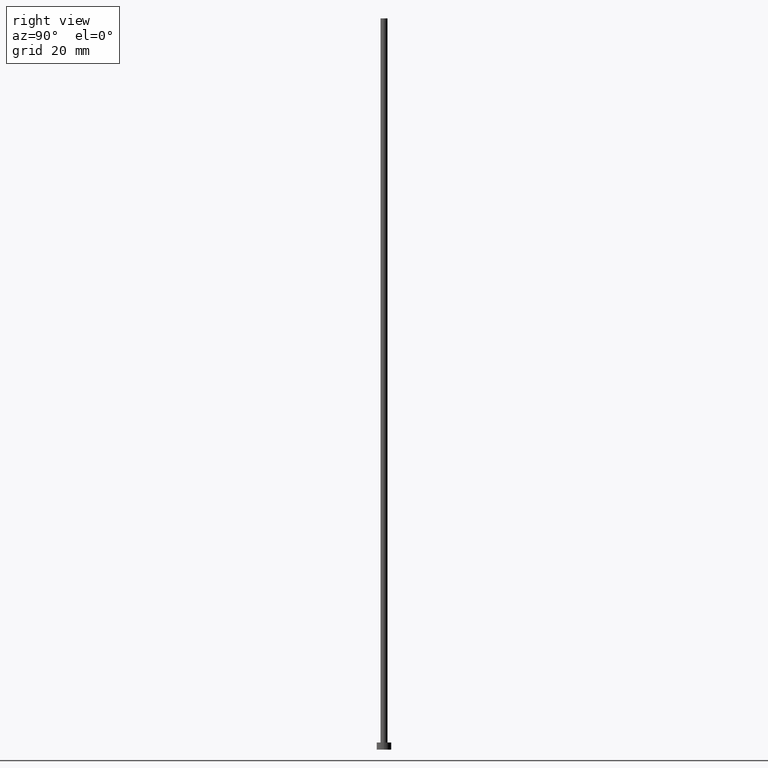
[diagram: clean part render]
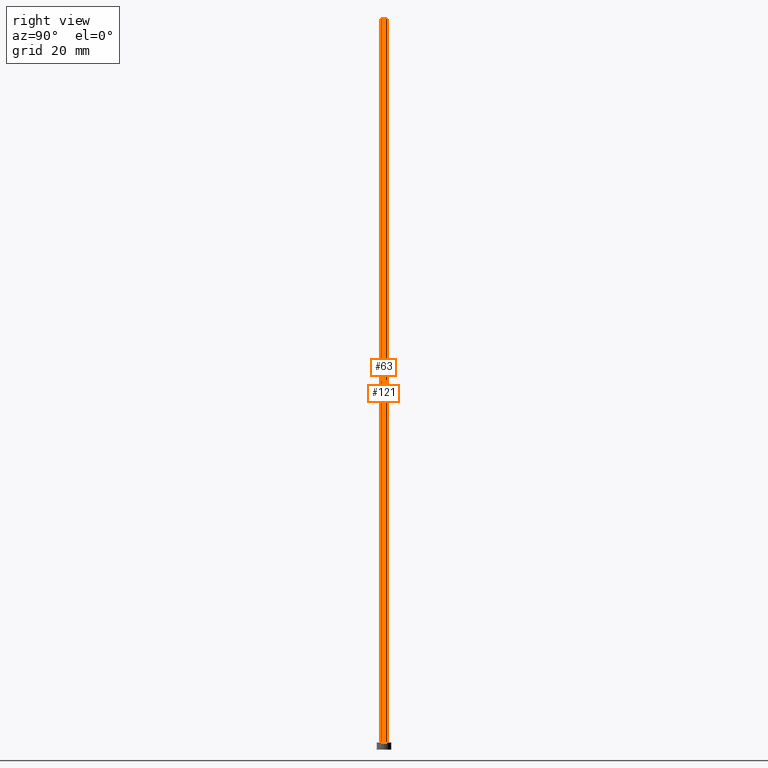
[diagram: same view with one multi-face feature highlighted, each face labeled with its STEP entity id]
A machine part, right view. The highlighted faces form ONE feature: a constant-radius fillet chain: 2 tangent blend faces with common blend radius 0.6 mm. The faces share edges in the B-rep.
Their STEP definitions:
[1] entity #63 (Cylinder):
#7 = CIRCLE ( 'NONE', #134, 0.5999999999999999778 ) ;
#18 = ORIENTED_EDGE ( 'NONE', *, *, #146, .T. ) ;
#19 = EDGE_CURVE ( 'NONE', #94, #36, #7, .T. ) ;
#20 = ORIENTED_EDGE ( 'NONE', *, *, #166, .T. ) ;
#23 = CARTESIAN_POINT ( 'NONE',  ( -0.5999999999999999778, 0.000000000000000000, 125.0000000000000000 ) ) ;
#27 = EDGE_CURVE ( 'NONE', #36, #229, #96, .T. ) ;
#28 = CARTESIAN_POINT ( 'NONE',  ( -0.5999999999999999778, 0.000000000000000000, 1.199999999999999956 ) ) ;
#29 = VECTOR ( 'NONE', #38, 1000.000000000000000 ) ;
#36 = VERTEX_POINT ( 'NONE', #132 ) ;
#38 = DIRECTION ( 'NONE',  ( -0.000000000000000000, -0.000000000000000000, -1.000000000000000000 ) ) ;
#39 = ORIENTED_EDGE ( 'NONE', *, *, #27, .F. ) ;
#43 = VECTOR ( 'NONE', #123, 1000.000000000000000 ) ;
#57 = CARTESIAN_POINT ( 'NONE',  ( 0.000000000000000000, 0.000000000000000000, 125.0000000000000000 ) ) ;
#58 = DIRECTION ( 'NONE',  ( -1.000000000000000000, 0.000000000000000000, 0.000000000000000000 ) ) ;
#63 = ADVANCED_FACE ( 'NONE', ( #250 ), #75, .T. ) ;
#75 = CYLINDRICAL_SURFACE ( 'NONE', #217, 0.5999999999999999778 ) ;
#94 = VERTEX_POINT ( 'NONE', #23 ) ;
#96 = LINE ( 'NONE', #191, #29 ) ;
#113 = ORIENTED_EDGE ( 'NONE', *, *, #19, .F. ) ;
#117 = EDGE_LOOP ( 'NONE', ( #39, #113, #20, #18 ) ) ;
#123 = DIRECTION ( 'NONE',  ( -0.000000000000000000, -0.000000000000000000, -1.000000000000000000 ) ) ;
#125 = CARTESIAN_POINT ( 'NONE',  ( 0.5999999999999999778, 7.347880794884117764E-17, 1.199999999999999956 ) ) ;
#131 = DIRECTION ( 'NONE',  ( 0.000000000000000000, 0.000000000000000000, 1.000000000000000000 ) ) ;
#132 = CARTESIAN_POINT ( 'NONE',  ( 0.5999999999999999778, 7.347880794884117764E-17, 125.0000000000000000 ) ) ;
#134 = AXIS2_PLACEMENT_3D ( 'NONE', #253, #131, #210 ) ;
#137 = LINE ( 'NONE', #155, #43 ) ;
#146 = EDGE_CURVE ( 'NONE', #213, #229, #222, .T. ) ;
#148 = AXIS2_PLACEMENT_3D ( 'NONE', #201, #218, #198 ) ;
#155 = CARTESIAN_POINT ( 'NONE',  ( -0.5999999999999999778, 0.000000000000000000, 125.0000000000000000 ) ) ;
#166 = EDGE_CURVE ( 'NONE', #94, #213, #137, .T. ) ;
#191 = CARTESIAN_POINT ( 'NONE',  ( 0.5999999999999999778, 7.347880794884117764E-17, 125.0000000000000000 ) ) ;
#198 = DIRECTION ( 'NONE',  ( 1.000000000000000000, 0.000000000000000000, 0.000000000000000000 ) ) ;
#201 = CARTESIAN_POINT ( 'NONE',  ( 0.000000000000000000, 0.000000000000000000, 1.199999999999999956 ) ) ;
#210 = DIRECTION ( 'NONE',  ( 1.000000000000000000, 0.000000000000000000, 0.000000000000000000 ) ) ;
#213 = VERTEX_POINT ( 'NONE', #28 ) ;
#217 = AXIS2_PLACEMENT_3D ( 'NONE', #57, #233, #58 ) ;
#218 = DIRECTION ( 'NONE',  ( 0.000000000000000000, 0.000000000000000000, 1.000000000000000000 ) ) ;
#222 = CIRCLE ( 'NONE', #148, 0.5999999999999999778 ) ;
#229 = VERTEX_POINT ( 'NONE', #125 ) ;
#233 = DIRECTION ( 'NONE',  ( -0.000000000000000000, -0.000000000000000000, -1.000000000000000000 ) ) ;
#250 = FACE_OUTER_BOUND ( 'NONE', #117, .T. ) ;
#253 = CARTESIAN_POINT ( 'NONE',  ( 0.000000000000000000, 0.000000000000000000, 125.0000000000000000 ) ) ;
[2] entity #121 (Cylinder):
#13 = AXIS2_PLACEMENT_3D ( 'NONE', #255, #157, #80 ) ;
#23 = CARTESIAN_POINT ( 'NONE',  ( -0.5999999999999999778, 0.000000000000000000, 125.0000000000000000 ) ) ;
#25 = CARTESIAN_POINT ( 'NONE',  ( 0.000000000000000000, 0.000000000000000000, 1.199999999999999956 ) ) ;
#26 = CYLINDRICAL_SURFACE ( 'NONE', #13, 0.5999999999999999778 ) ;
#27 = EDGE_CURVE ( 'NONE', #36, #229, #96, .T. ) ;
#28 = CARTESIAN_POINT ( 'NONE',  ( -0.5999999999999999778, 0.000000000000000000, 1.199999999999999956 ) ) ;
#29 = VECTOR ( 'NONE', #38, 1000.000000000000000 ) ;
#36 = VERTEX_POINT ( 'NONE', #132 ) ;
#38 = DIRECTION ( 'NONE',  ( -0.000000000000000000, -0.000000000000000000, -1.000000000000000000 ) ) ;
#41 = DIRECTION ( 'NONE',  ( 1.000000000000000000, 0.000000000000000000, 0.000000000000000000 ) ) ;
#43 = VECTOR ( 'NONE', #123, 1000.000000000000000 ) ;
#48 = EDGE_CURVE ( 'NONE', #36, #94, #98, .T. ) ;
#60 = ORIENTED_EDGE ( 'NONE', *, *, #224, .T. ) ;
#64 = FACE_OUTER_BOUND ( 'NONE', #254, .T. ) ;
#77 = CARTESIAN_POINT ( 'NONE',  ( 0.000000000000000000, 0.000000000000000000, 125.0000000000000000 ) ) ;
#80 = DIRECTION ( 'NONE',  ( -1.000000000000000000, 0.000000000000000000, 0.000000000000000000 ) ) ;
#94 = VERTEX_POINT ( 'NONE', #23 ) ;
#96 = LINE ( 'NONE', #191, #29 ) ;
#98 = CIRCLE ( 'NONE', #167, 0.5999999999999999778 ) ;
#121 = ADVANCED_FACE ( 'NONE', ( #64 ), #26, .T. ) ;
#123 = DIRECTION ( 'NONE',  ( -0.000000000000000000, -0.000000000000000000, -1.000000000000000000 ) ) ;
#125 = CARTESIAN_POINT ( 'NONE',  ( 0.5999999999999999778, 7.347880794884117764E-17, 1.199999999999999956 ) ) ;
#132 = CARTESIAN_POINT ( 'NONE',  ( 0.5999999999999999778, 7.347880794884117764E-17, 125.0000000000000000 ) ) ;
#133 = ORIENTED_EDGE ( 'NONE', *, *, #166, .F. ) ;
#137 = LINE ( 'NONE', #155, #43 ) ;
#151 = DIRECTION ( 'NONE',  ( 1.000000000000000000, 0.000000000000000000, 0.000000000000000000 ) ) ;
#155 = CARTESIAN_POINT ( 'NONE',  ( -0.5999999999999999778, 0.000000000000000000, 125.0000000000000000 ) ) ;
#157 = DIRECTION ( 'NONE',  ( -0.000000000000000000, -0.000000000000000000, -1.000000000000000000 ) ) ;
#166 = EDGE_CURVE ( 'NONE', #94, #213, #137, .T. ) ;
#167 = AXIS2_PLACEMENT_3D ( 'NONE', #77, #176, #151 ) ;
#176 = DIRECTION ( 'NONE',  ( 0.000000000000000000, 0.000000000000000000, 1.000000000000000000 ) ) ;
#179 = DIRECTION ( 'NONE',  ( 0.000000000000000000, 0.000000000000000000, 1.000000000000000000 ) ) ;
#191 = CARTESIAN_POINT ( 'NONE',  ( 0.5999999999999999778, 7.347880794884117764E-17, 125.0000000000000000 ) ) ;
#196 = ORIENTED_EDGE ( 'NONE', *, *, #27, .T. ) ;
#212 = ORIENTED_EDGE ( 'NONE', *, *, #48, .F. ) ;
#213 = VERTEX_POINT ( 'NONE', #28 ) ;
#224 = EDGE_CURVE ( 'NONE', #229, #213, #247, .T. ) ;
#229 = VERTEX_POINT ( 'NONE', #125 ) ;
#234 = AXIS2_PLACEMENT_3D ( 'NONE', #25, #179, #41 ) ;
#247 = CIRCLE ( 'NONE', #234, 0.5999999999999999778 ) ;
#254 = EDGE_LOOP ( 'NONE', ( #212, #196, #60, #133 ) ) ;
#255 = CARTESIAN_POINT ( 'NONE',  ( 0.000000000000000000, 0.000000000000000000, 125.0000000000000000 ) ) ;